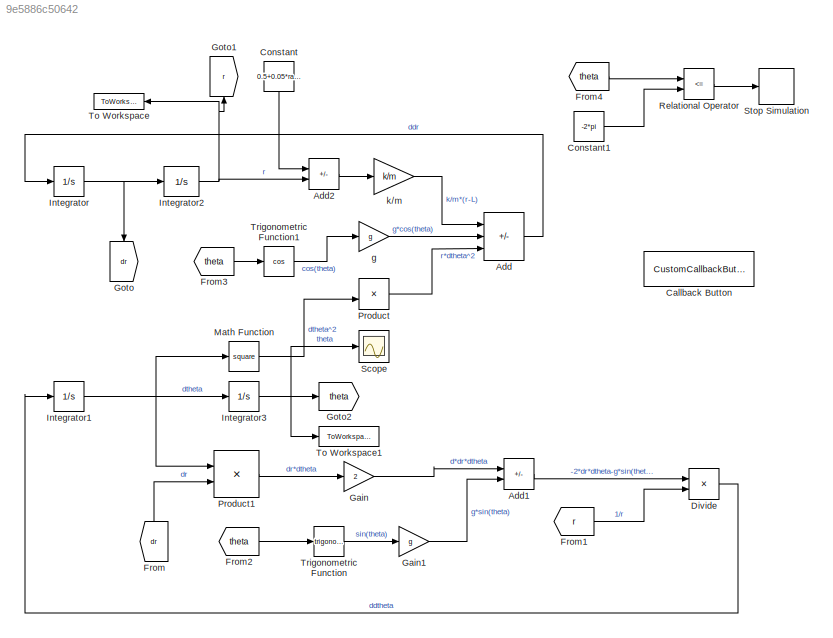
MODEL slx_9e5886c50642
KIND model
CONFIG AbsTol = auto
CONFIG EnableMultiTasking = off
CONFIG FixedStep = 0.01
CONFIG MaxStep = auto
CONFIG MinStep = auto
CONFIG RelTol = 1e-3
CONFIG SampleTimeConstraint = Unconstrained
CONFIG SolverName = FixedStepAuto
CONFIG StartTime = 0.0
CONFIG StopTime = 10.0
WORKSPACE source: MATLAB code (in-file)
WORKSPACE k = 40
WORKSPACE m = 0.25
WORKSPACE L = 0.5 + 0.02*randn(1,5)
BLOCK [Sum] Add
  IconShape = rectangular
  Inputs = -++
BLOCK [Sum] Add1
  IconShape = rectangular
  Inputs = --
BLOCK [Sum] Add2
  IconShape = rectangular
  Inputs = -+
BLOCK [CustomCallbackButton] Callback Button
  Configuration = {"components":[{"name":"BackgroundImageComponent","settings":{"image":{"size":[0,0],"src":"default","srcOrientation":"Right"},"position":[0,0,1,1]}},{"name":"ButtonStateComponent","settings":{"buttonType":"momentary","clickFcn":"r = out.r;\ntheta = out.theta;\nt = out.tout;\n\nfigure\nplot(t,r,'b','linewidth',2)\ngrid on\nxlabel('Tiempo (s)')\nylabel('r (m)')\n\nfigure\nplot(t,theta,'LineWidth',2)...<+2274ch>
  CustomBackgroundColor = {"color":[0.9568627451,0.9568627451,0.9568627451],"show":true}
BLOCK [Constant] Constant
  NameLocation = left
  Value = 0.5+0.05*randn(1,10)
BLOCK [Constant] Constant1
  Value = -2*pi
BLOCK [Product] Divide
  Inputs = */
BLOCK [From] From
  GotoTag = dr
  NameLocation = right
BLOCK [From] From1
  GotoTag = r
BLOCK [From] From2
  GotoTag = theta
BLOCK [From] From3
  GotoTag = theta
BLOCK [From] From4
  GotoTag = theta
BLOCK [Gain] Gain
  Gain = 2
BLOCK [Gain] Gain1
  Gain = g
BLOCK [Goto] Goto
  GotoTag = dr
  NameLocation = left
BLOCK [Goto] Goto1
  GotoTag = r
  NameLocation = right
BLOCK [Goto] Goto2
  GotoTag = theta
BLOCK [Integrator] Integrator
  InitialCondition = -0.5
BLOCK [Integrator] Integrator1
BLOCK [Integrator] Integrator2
  InitialCondition = L
BLOCK [Integrator] Integrator3
  InitialCondition = (60*pi/180)
BLOCK [Math] Math Function
  Operator = square
BLOCK [Product] Product
BLOCK [Product] Product1
BLOCK [RelationalOperator] Relational Operator
  InputSameDT = off
  Operator = <=
  OutDataTypeStr = boolean
  RndMeth = Simplest
BLOCK [Scope] Scope
  Floating = off
  NumInputPorts = 1
  ScopeSpecificationString = Simulink.scopes.TimeScopeBlockCfg('CurrentConfiguration', extmgr.ConfigurationSet(extmgr.Configuration('Core','General UI',true),extmgr.Configuration('Core','Source UI',true),extmgr.Configuration('Sources','WiredSimulink',true),extmgr.Configuration('Visuals','Time Domain',true,'SerializedDisplays',{struct('MinYLimReal','-0.15739','MaxYLimReal','1.18104','YLabelReal','','MinYLimMag','0.00000','MaxY...<+13690ch>
BLOCK [Stop] Stop Simulation
BLOCK [ToWorkspace] To Workspace
  FixptAsFi = on
  MaxDataPoints = inf
  NameLocation = top
  SampleTime = -1
  VariableName = r
BLOCK [ToWorkspace] To Workspace1
  FixptAsFi = on
  MaxDataPoints = inf
  SampleTime = -1
  VariableName = theta
BLOCK [Trigonometry] Trigonometric Function
BLOCK [Trigonometry] Trigonometric Function1
  Operator = cos
BLOCK [Gain] g
  Gain = g
BLOCK [Gain] k//m
  Gain = k/m
LINE Add1:1 -> Divide:1
LINE Add2:1 -> k//m:1
LINE Add:1 -> Integrator:1
LINE Constant1:1 -> Relational Operator:2
LINE Constant:1 -> Add2:1
LINE Divide:1 -> Integrator1:1
LINE From1:1 -> Divide:2
LINE From2:1 -> Trigonometric Function:1
LINE From3:1 -> Trigonometric Function1:1
LINE From4:1 -> Relational Operator:1
LINE From:1 -> Product1:2
LINE Gain1:1 -> Add1:2
LINE Gain:1 -> Add1:1
NET Integrator1:1 -> Integrator3:1, Math Function:1, Product1:1
NET Integrator2:1 -> Add2:2, Goto1:1, To Workspace:1
NET Integrator3:1 -> Goto2:1, Scope:1, To Workspace1:1
NET Integrator:1 -> Goto:1, Integrator2:1
LINE Math Function:1 -> Product:2
LINE Product1:1 -> Gain:1
LINE Product:1 -> Add:3
LINE Relational Operator:1 -> Stop Simulation:1
LINE Trigonometric Function1:1 -> g:1
LINE Trigonometric Function:1 -> Gain1:1
LINE g:1 -> Add:2
LINE k//m:1 -> Add:1
note: NET lines group one-source signal fan-out (src -> all destinations, sorted); 1:1 wires keep LINE
